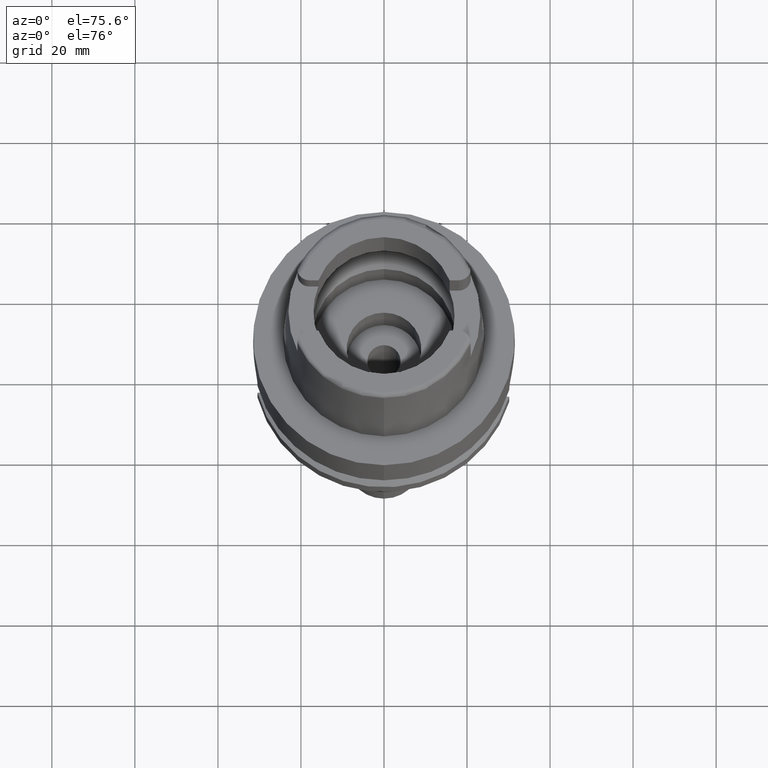
[diagram: clean part render]
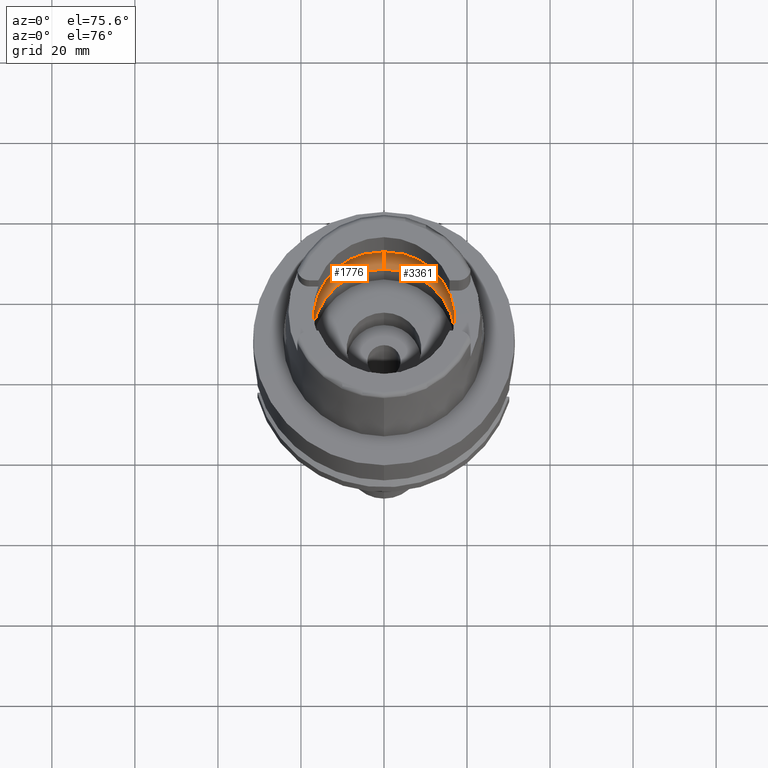
[diagram: same view with one multi-face feature highlighted, each face labeled with its STEP entity id]
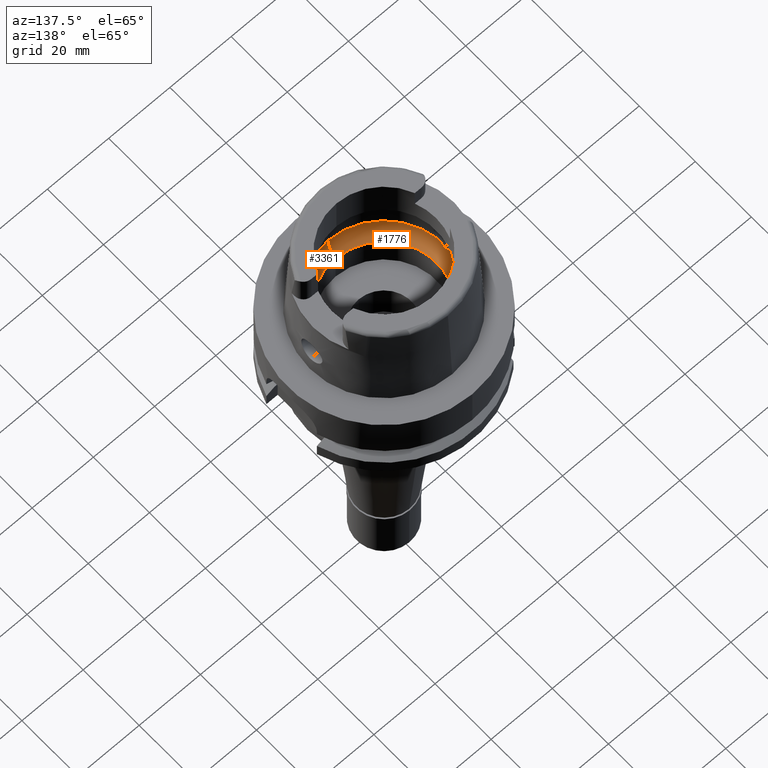
[diagram: same view with one multi-face feature highlighted, each face labeled with its STEP entity id]
A machine part, auxiliary view. The highlighted faces form ONE feature: a constant-radius fillet chain: 2 tangent blend faces with common blend radius 8 mm. The faces share edges in the B-rep.
A second angle (auxiliary view) of the same feature is appended — it is thin or edge-on in the first view.
Their STEP definitions:
[1] entity #3361 (Torus):
#10 = CARTESIAN_POINT ( 'NONE',  ( 19.94501428475999916, 0.0000000000000000000, 5.250000000000000000 ) ) ;
#181 = ORIENTED_EDGE ( 'NONE', *, *, #949, .T. ) ;
#349 = CARTESIAN_POINT ( 'NONE',  ( 19.84575864665999845, 2.479085262491000030, 6.186348233825000875 ) ) ;
#356 = DIRECTION ( 'NONE',  ( 0.0000000000000000000, 0.0000000000000000000, -1.000000000000000000 ) ) ;
#358 = CARTESIAN_POINT ( 'NONE',  ( 19.84575864665999845, -2.479085262491000030, 6.186348233825000875 ) ) ;
#381 = ORIENTED_EDGE ( 'NONE', *, *, #393, .F. ) ;
#382 = CARTESIAN_POINT ( 'NONE',  ( 19.92606514397989770, -1.317277072657929482, 5.488971321394604530 ) ) ;
#393 = EDGE_CURVE ( 'NONE', #3752, #1563, #3090, .T. ) ;
#400 = CARTESIAN_POINT ( 'NONE',  ( 19.92517033494361556, 1.343817989893349107, 5.499041037980064495 ) ) ;
#443 = VERTEX_POINT ( 'NONE', #1825 ) ;
#491 = TOROIDAL_SURFACE ( 'NONE', #3357, 12.00000000000000000, 8.000000000000000000 ) ;
#687 = CARTESIAN_POINT ( 'NONE',  ( 19.94340172595015304, -0.4850964367992693926, 5.274618258021613215 ) ) ;
#747 = B_SPLINE_CURVE_WITH_KNOTS ( 'NONE', 3,
 ( #1121, #1520, #687, #2339, #793, #3682, #2783, #3711, #1628, #4501, #382, #1550, #3210, #4445, #358 ),
 .UNSPECIFIED., .F., .F.,
 ( 4, 2, 2, 1, 1, 1, 2, 2, 4 ),
 ( 0.0000000000000000000, 0.2500000000000020539, 0.3750000000000029421, 0.4375000000000034417, 0.4687500000000037748, 0.4843750000000038303, 0.4921875000000037192, 0.5000000000000035527, 1.000000000000000000 ),
 .UNSPECIFIED. ) ;
#793 = CARTESIAN_POINT ( 'NONE',  ( 19.93654835100833367, -0.9262716854701089630, 5.364597633124626341 ) ) ;
#855 = DIRECTION ( 'NONE',  ( 0.0000000000000000000, -1.000000000000000000, 0.0000000000000000000 ) ) ;
#864 = CARTESIAN_POINT ( 'NONE',  ( 19.92546248860872282, 1.335239979097143204, 5.495763251854120846 ) ) ;
#916 = DIRECTION ( 'NONE',  ( 0.0000000000000000000, 0.0000000000000000000, 1.000000000000000000 ) ) ;
#920 = CIRCLE ( 'NONE', #3447, 7.999999999999992895 ) ;
#949 = EDGE_CURVE ( 'NONE', #3752, #2128, #3457, .T. ) ;
#970 = ORIENTED_EDGE ( 'NONE', *, *, #1524, .F. ) ;
#1043 = ORIENTED_EDGE ( 'NONE', *, *, #1923, .F. ) ;
#1121 = CARTESIAN_POINT ( 'NONE',  ( 19.94501428475999916, 0.0000000000000000000, 5.250000000000000000 ) ) ;
#1200 = AXIS2_PLACEMENT_3D ( 'NONE', #4465, #356, #5270 ) ;
#1228 = CARTESIAN_POINT ( 'NONE',  ( 0.0000000000000000000, -17.25000000000000000, 0.1500000000000999700 ) ) ;
#1520 = CARTESIAN_POINT ( 'NONE',  ( 19.94501428475999560, -0.2480409057135740114, 5.250000000000000000 ) ) ;
#1524 = EDGE_CURVE ( 'NONE', #443, #2128, #4333, .T. ) ;
#1550 = CARTESIAN_POINT ( 'NONE',  ( 19.92590906856741739, -1.321975393417708533, 5.490734853362561729 ) ) ;
#1563 = VERTEX_POINT ( 'NONE', #3254 ) ;
#1612 = CARTESIAN_POINT ( 'NONE',  ( 19.94501428475999560, 0.4961173919640057828, 5.249999999999999112 ) ) ;
#1628 = CARTESIAN_POINT ( 'NONE',  ( 19.92705252129802673, -1.287137646737876562, 5.477775250961276932 ) ) ;
#1639 = CARTESIAN_POINT ( 'NONE',  ( 19.91819205508162227, 1.528957928135066258, 5.574902649514004160 ) ) ;
#1825 = CARTESIAN_POINT ( 'NONE',  ( 19.84575864665999845, -2.479085262491000030, 6.186348233825000875 ) ) ;
#1900 = EDGE_LOOP ( 'NONE', ( #2832, #1043, #5250, #381, #181, #970, #2246 ) ) ;
#1923 = EDGE_CURVE ( 'NONE', #4416, #4280, #5215, .T. ) ;
#2001 = CARTESIAN_POINT ( 'NONE',  ( 19.86453694707040185, 2.328759808428484401, 6.053897721567618184 ) ) ;
#2051 = CARTESIAN_POINT ( 'NONE',  ( 19.90653742522446379, 1.770129897597210178, 5.691947325404154157 ) ) ;
#2060 = CARTESIAN_POINT ( 'NONE',  ( 0.0000000000000000000, 20.00000000000000000, 6.186348233825000875 ) ) ;
#2128 = VERTEX_POINT ( 'NONE', #2772 ) ;
#2246 = ORIENTED_EDGE ( 'NONE', *, *, #3664, .F. ) ;
#2339 = CARTESIAN_POINT ( 'NONE',  ( 19.93856404952062533, -0.8186975845892766612, 5.338708399471165045 ) ) ;
#2484 = CARTESIAN_POINT ( 'NONE',  ( 19.88058488118039335, 2.158463974044561251, 5.925241923970850699 ) ) ;
#2500 = CARTESIAN_POINT ( 'NONE',  ( 0.0000000000000000000, 12.00000000000000000, 6.186348233825000875 ) ) ;
#2549 = EDGE_CURVE ( 'NONE', #4280, #2795, #3147, .T. ) ;
#2576 = DIRECTION ( 'NONE',  ( 0.0000000000000000000, 1.000000000000000000, 0.0000000000000000000 ) ) ;
#2606 = DIRECTION ( 'NONE',  ( 0.0000000000000000000, 0.6562500000000006661, -0.7545435292281016393 ) ) ;
#2772 = CARTESIAN_POINT ( 'NONE',  ( 0.0000000000000000000, -20.00000000000000000, 6.186348233825000875 ) ) ;
#2783 = CARTESIAN_POINT ( 'NONE',  ( 19.93095478763670414, -1.158129320215881553, 5.432640215619322532 ) ) ;
#2795 = VERTEX_POINT ( 'NONE', #4442 ) ;
#2832 = ORIENTED_EDGE ( 'NONE', *, *, #2549, .F. ) ;
#2886 = DIRECTION ( 'NONE',  ( -1.000000000000000000, 0.0000000000000000000, 0.0000000000000000000 ) ) ;
#2894 = CARTESIAN_POINT ( 'NONE',  ( 19.92390804158881323, 1.380020403548397390, 5.513101011326238421 ) ) ;
#2926 = AXIS2_PLACEMENT_3D ( 'NONE', #4970, #2886, #5279 ) ;
#3027 = CARTESIAN_POINT ( 'NONE',  ( 0.0000000000000000000, 0.0000000000000000000, 6.186348233825000875 ) ) ;
#3042 = DIRECTION ( 'NONE',  ( 0.0000000000000000000, -1.000000000000000000, 0.0000000000000000000 ) ) ;
#3090 = CIRCLE ( 'NONE', #3795, 17.25000000000000000 ) ;
#3147 = B_SPLINE_CURVE_WITH_KNOTS ( 'NONE', 3,
 ( #349, #2001, #2484, #4564, #2051, #4100, #1639, #4544, #2894, #3755, #400, #864, #4979, #1612, #10 ),
 .UNSPECIFIED., .F., .F.,
 ( 4, 2, 2, 1, 1, 1, 2, 2, 4 ),
 ( 0.0000000000000000000, 0.2499999999999997780, 0.3749999999999993339, 0.4374999999999993894, 0.4687499999999993339, 0.4843749999999992228, 0.4921874999999992228, 0.4999999999999992228, 1.000000000000000000 ),
 .UNSPECIFIED. ) ;
#3210 = CARTESIAN_POINT ( 'NONE',  ( 19.90995224940876440, -1.795938227366685735, 5.670407759492701594 ) ) ;
#3254 = CARTESIAN_POINT ( 'NONE',  ( 0.0000000000000000000, 17.25000000000000000, 0.1499999999999999944 ) ) ;
#3357 = AXIS2_PLACEMENT_3D ( 'NONE', #3027, #4169, #855 ) ;
#3361 = ADVANCED_FACE ( 'NONE', ( #3383 ), #491, .F. ) ;
#3383 = FACE_OUTER_BOUND ( 'NONE', #1900, .T. ) ;
#3447 = AXIS2_PLACEMENT_3D ( 'NONE', #2500, #3844, #2606 ) ;
#3457 = CIRCLE ( 'NONE', #2926, 7.999999999999992895 ) ;
#3664 = EDGE_CURVE ( 'NONE', #2795, #443, #747, .T. ) ;
#3682 = CARTESIAN_POINT ( 'NONE',  ( 19.93292009368618523, -1.081811675228354197, 5.409026468986952274 ) ) ;
#3711 = CARTESIAN_POINT ( 'NONE',  ( 19.92839737014920587, -1.244570694252813636, 5.462384987428344552 ) ) ;
#3752 = VERTEX_POINT ( 'NONE', #1228 ) ;
#3755 = CARTESIAN_POINT ( 'NONE',  ( 19.92466861724970784, 1.358322854824430825, 5.504643156161263207 ) ) ;
#3795 = AXIS2_PLACEMENT_3D ( 'NONE', #3859, #916, #3042 ) ;
#3844 = DIRECTION ( 'NONE',  ( 1.000000000000000000, 0.0000000000000000000, 0.0000000000000000000 ) ) ;
#3859 = CARTESIAN_POINT ( 'NONE',  ( 0.0000000000000000000, 0.0000000000000000000, 0.1500000000000999700 ) ) ;
#4026 = CARTESIAN_POINT ( 'NONE',  ( 19.84575864665999845, 2.479085262491000030, 6.186348233825000875 ) ) ;
#4100 = CARTESIAN_POINT ( 'NONE',  ( 19.91447782635634312, 1.610662747255747096, 5.612997844306910622 ) ) ;
#4169 = DIRECTION ( 'NONE',  ( 0.0000000000000000000, 0.0000000000000000000, -1.000000000000000000 ) ) ;
#4245 = AXIS2_PLACEMENT_3D ( 'NONE', #4656, #4717, #2576 ) ;
#4280 = VERTEX_POINT ( 'NONE', #4026 ) ;
#4333 = CIRCLE ( 'NONE', #1200, 20.00000000000001421 ) ;
#4416 = VERTEX_POINT ( 'NONE', #2060 ) ;
#4442 = CARTESIAN_POINT ( 'NONE',  ( 19.94501428475999916, 0.0000000000000000000, 5.250000000000000000 ) ) ;
#4445 = CARTESIAN_POINT ( 'NONE',  ( 19.88331727194813325, -2.178418147904306768, 5.921432929931162548 ) ) ;
#4465 = CARTESIAN_POINT ( 'NONE',  ( 0.0000000000000000000, 0.0000000000000000000, 6.186348233825000875 ) ) ;
#4501 = CARTESIAN_POINT ( 'NONE',  ( 19.92646198462449902, -1.305240071145295166, 5.484478754890474761 ) ) ;
#4544 = CARTESIAN_POINT ( 'NONE',  ( 19.92207737120660838, 1.430228553613144271, 5.533213232039442708 ) ) ;
#4564 = CARTESIAN_POINT ( 'NONE',  ( 19.90056123289476275, 1.871176222328685412, 5.748254232980315237 ) ) ;
#4656 = CARTESIAN_POINT ( 'NONE',  ( 0.0000000000000000000, 0.0000000000000000000, 6.186348233825000875 ) ) ;
#4717 = DIRECTION ( 'NONE',  ( 0.0000000000000000000, 0.0000000000000000000, -1.000000000000000000 ) ) ;
#4970 = CARTESIAN_POINT ( 'NONE',  ( 0.0000000000000000000, -12.00000000000000000, 6.186348233825000875 ) ) ;
#4979 = CARTESIAN_POINT ( 'NONE',  ( 19.93856420767916404, 0.9461146673045343070, 5.348252842016403719 ) ) ;
#5137 = EDGE_CURVE ( 'NONE', #1563, #4416, #920, .T. ) ;
#5215 = CIRCLE ( 'NONE', #4245, 20.00000000000000000 ) ;
#5250 = ORIENTED_EDGE ( 'NONE', *, *, #5137, .F. ) ;
#5270 = DIRECTION ( 'NONE',  ( 0.9922879323327794543, -0.1239542631244973381, 0.0000000000000000000 ) ) ;
#5279 = DIRECTION ( 'NONE',  ( 0.0000000000000000000, -0.6562500000000006661, -0.7545435292281016393 ) ) ;
[2] entity #1776 (Torus):
#11 = ORIENTED_EDGE ( 'NONE', *, *, #949, .F. ) ;
#13 = CARTESIAN_POINT ( 'NONE',  ( -19.88331748558546863, 2.178416437691213847, 5.921431423076573886 ) ) ;
#21 = EDGE_CURVE ( 'NONE', #5042, #331, #3493, .T. ) ;
#32 = CIRCLE ( 'NONE', #1511, 17.25000000000000000 ) ;
#55 = ORIENTED_EDGE ( 'NONE', *, *, #2963, .F. ) ;
#146 = CARTESIAN_POINT ( 'NONE',  ( -19.92207708731347893, -1.430235645114716236, 5.533216160818549945 ) ) ;
#177 = CARTESIAN_POINT ( 'NONE',  ( -19.92517005465364122, -1.343825724865687299, 5.499044007117725563 ) ) ;
#331 = VERTEX_POINT ( 'NONE', #514 ) ;
#364 = ORIENTED_EDGE ( 'NONE', *, *, #4336, .F. ) ;
#396 = CIRCLE ( 'NONE', #1948, 20.00000000000001421 ) ;
#407 = CARTESIAN_POINT ( 'NONE',  ( -19.92646225184126862, 1.305232378195689824, 5.484475898738382149 ) ) ;
#459 = CARTESIAN_POINT ( 'NONE',  ( -19.93856414242614861, 0.8186925878076017904, 5.338707303697845852 ) ) ;
#514 = CARTESIAN_POINT ( 'NONE',  ( -19.94501428475999916, 0.0000000000000000000, 5.250000000000000000 ) ) ;
#869 = CARTESIAN_POINT ( 'NONE',  ( -19.92839760948977812, 1.244563320346107949, 5.462382395228401855 ) ) ;
#920 = CIRCLE ( 'NONE', #3447, 7.999999999999992895 ) ;
#949 = EDGE_CURVE ( 'NONE', #3752, #2128, #3457, .T. ) ;
#1029 = DIRECTION ( 'NONE',  ( 0.0000000000000000000, 0.0000000000000000000, -1.000000000000000000 ) ) ;
#1096 = CARTESIAN_POINT ( 'NONE',  ( -19.90653715571481186, -1.770134510244598225, 5.691949820981133001 ) ) ;
#1145 = DIRECTION ( 'NONE',  ( 0.0000000000000000000, 0.0000000000000000000, 1.000000000000000000 ) ) ;
#1174 = CARTESIAN_POINT ( 'NONE',  ( -19.94501428475999916, 0.0000000000000000000, 5.250000000000000000 ) ) ;
#1193 = CARTESIAN_POINT ( 'NONE',  ( -19.92606541691252531, 1.317269316938425749, 5.488968411663852187 ) ) ;
#1228 = CARTESIAN_POINT ( 'NONE',  ( 0.0000000000000000000, -17.25000000000000000, 0.1500000000000999700 ) ) ;
#1245 = CARTESIAN_POINT ( 'NONE',  ( -19.93292026788402893, 1.081805184547093068, 5.409024518554652161 ) ) ;
#1399 = CARTESIAN_POINT ( 'NONE',  ( -19.92390775950450887, -1.380027868490966370, 5.513103966555212843 ) ) ;
#1511 = AXIS2_PLACEMENT_3D ( 'NONE', #4520, #1145, #3251 ) ;
#1563 = VERTEX_POINT ( 'NONE', #3254 ) ;
#1776 = ADVANCED_FACE ( 'NONE', ( #2497 ), #2410, .F. ) ;
#1915 = VERTEX_POINT ( 'NONE', #3101 ) ;
#1948 = AXIS2_PLACEMENT_3D ( 'NONE', #3268, #2816, #3240 ) ;
#1987 = CARTESIAN_POINT ( 'NONE',  ( -19.84575864665999845, -2.479085262491000030, 6.186348233825000875 ) ) ;
#2060 = CARTESIAN_POINT ( 'NONE',  ( 0.0000000000000000000, 20.00000000000000000, 6.186348233825000875 ) ) ;
#2113 = DIRECTION ( 'NONE',  ( 0.0000000000000000000, 0.0000000000000000000, -1.000000000000000000 ) ) ;
#2128 = VERTEX_POINT ( 'NONE', #2772 ) ;
#2163 = EDGE_CURVE ( 'NONE', #331, #1915, #2904, .T. ) ;
#2343 = AXIS2_PLACEMENT_3D ( 'NONE', #5385, #2113, #2881 ) ;
#2410 = TOROIDAL_SURFACE ( 'NONE', #3475, 12.00000000000000000, 8.000000000000000000 ) ;
#2493 = CARTESIAN_POINT ( 'NONE',  ( -19.92590934684916704, 1.321967521133739165, 5.490731887689888957 ) ) ;
#2497 = FACE_OUTER_BOUND ( 'NONE', #3597, .T. ) ;
#2500 = CARTESIAN_POINT ( 'NONE',  ( 0.0000000000000000000, 12.00000000000000000, 6.186348233825000875 ) ) ;
#2606 = DIRECTION ( 'NONE',  ( 0.0000000000000000000, 0.6562500000000006661, -0.7545435292281016393 ) ) ;
#2689 = CARTESIAN_POINT ( 'NONE',  ( 0.0000000000000000000, 0.0000000000000000000, 6.186348233825000875 ) ) ;
#2699 = CARTESIAN_POINT ( 'NONE',  ( -19.92546220624968356, -1.335247853971594179, 5.495766252403414320 ) ) ;
#2772 = CARTESIAN_POINT ( 'NONE',  ( 0.0000000000000000000, -20.00000000000000000, 6.186348233825000875 ) ) ;
#2816 = DIRECTION ( 'NONE',  ( 0.0000000000000000000, 0.0000000000000000000, -1.000000000000000000 ) ) ;
#2881 = DIRECTION ( 'NONE',  ( 0.0000000000000000000, -1.000000000000000000, 0.0000000000000000000 ) ) ;
#2886 = DIRECTION ( 'NONE',  ( -1.000000000000000000, 0.0000000000000000000, 0.0000000000000000000 ) ) ;
#2897 = CARTESIAN_POINT ( 'NONE',  ( -19.90995255595161595, 1.795933884455198859, 5.670404923157676969 ) ) ;
#2904 = B_SPLINE_CURVE_WITH_KNOTS ( 'NONE', 3,
 ( #4375, #3247, #4547, #459, #5011, #1245, #4210, #869, #3675, #407, #1193, #2493, #2897, #13, #4925 ),
 .UNSPECIFIED., .F., .F.,
 ( 4, 2, 2, 1, 1, 1, 2, 2, 4 ),
 ( 0.0000000000000000000, 0.2500000000000077716, 0.3750000000000116018, 0.4375000000000136557, 0.4687500000000147660, 0.4843750000000151545, 0.4921875000000151545, 0.5000000000000150990, 1.000000000000000000 ),
 .UNSPECIFIED. ) ;
#2926 = AXIS2_PLACEMENT_3D ( 'NONE', #4970, #2886, #5279 ) ;
#2963 = EDGE_CURVE ( 'NONE', #2128, #5042, #3920, .T. ) ;
#3061 = CARTESIAN_POINT ( 'NONE',  ( -19.92466833620654043, -1.358330481554967495, 5.504646120092022699 ) ) ;
#3074 = DIRECTION ( 'NONE',  ( 0.0000000000000000000, -1.000000000000000000, 0.0000000000000000000 ) ) ;
#3101 = CARTESIAN_POINT ( 'NONE',  ( -19.84575864665999845, 2.479085262491000030, 6.186348233825000875 ) ) ;
#3109 = CARTESIAN_POINT ( 'NONE',  ( -19.91447754460955721, -1.610668511863743824, 5.613000592307838765 ) ) ;
#3155 = CARTESIAN_POINT ( 'NONE',  ( -19.84575864665999845, -2.479085262491000030, 6.186348233825000875 ) ) ;
#3240 = DIRECTION ( 'NONE',  ( -0.9922879323327794543, 0.1239542631244973381, 0.0000000000000000000 ) ) ;
#3247 = CARTESIAN_POINT ( 'NONE',  ( -19.94501428476000982, 0.2480393544995824484, 5.250000000000001776 ) ) ;
#3251 = DIRECTION ( 'NONE',  ( 0.0000000000000000000, 1.000000000000000000, 0.0000000000000000000 ) ) ;
#3254 = CARTESIAN_POINT ( 'NONE',  ( 0.0000000000000000000, 17.25000000000000000, 0.1499999999999999944 ) ) ;
#3268 = CARTESIAN_POINT ( 'NONE',  ( 0.0000000000000000000, 0.0000000000000000000, 6.186348233825000875 ) ) ;
#3447 = AXIS2_PLACEMENT_3D ( 'NONE', #2500, #3844, #2606 ) ;
#3457 = CIRCLE ( 'NONE', #2926, 7.999999999999992895 ) ;
#3475 = AXIS2_PLACEMENT_3D ( 'NONE', #2689, #1029, #3074 ) ;
#3493 = B_SPLINE_CURVE_WITH_KNOTS ( 'NONE', 3,
 ( #3155, #5144, #4828, #5191, #1096, #3109, #4283, #146, #1399, #3061, #177, #2699, #4064, #4089, #1174 ),
 .UNSPECIFIED., .F., .F.,
 ( 4, 2, 2, 1, 1, 1, 2, 2, 4 ),
 ( 0.0000000000000000000, 0.2499999999999978906, 0.3749999999999969469, 0.4374999999999966138, 0.4687499999999963363, 0.4843749999999962252, 0.4921874999999963363, 0.4999999999999964473, 1.000000000000000000 ),
 .UNSPECIFIED. ) ;
#3597 = EDGE_LOOP ( 'NONE', ( #55, #11, #364, #3885, #4652, #4261, #3662 ) ) ;
#3662 = ORIENTED_EDGE ( 'NONE', *, *, #21, .F. ) ;
#3675 = CARTESIAN_POINT ( 'NONE',  ( -19.92705278000905267, 1.287130048446308850, 5.477772474801105851 ) ) ;
#3752 = VERTEX_POINT ( 'NONE', #1228 ) ;
#3844 = DIRECTION ( 'NONE',  ( 1.000000000000000000, 0.0000000000000000000, 0.0000000000000000000 ) ) ;
#3885 = ORIENTED_EDGE ( 'NONE', *, *, #5137, .T. ) ;
#3920 = CIRCLE ( 'NONE', #2343, 20.00000000000000000 ) ;
#4064 = CARTESIAN_POINT ( 'NONE',  ( -19.93856411452979316, -0.9461205214874512937, 5.348254081022255413 ) ) ;
#4089 = CARTESIAN_POINT ( 'NONE',  ( -19.94501428476000626, -0.4961205090553917896, 5.249999999999999112 ) ) ;
#4210 = CARTESIAN_POINT ( 'NONE',  ( -19.93095499014167515, 1.158122409084933579, 5.432637980145733181 ) ) ;
#4261 = ORIENTED_EDGE ( 'NONE', *, *, #2163, .F. ) ;
#4283 = CARTESIAN_POINT ( 'NONE',  ( -19.91819177005300645, -1.528964289322727321, 5.574905501562616550 ) ) ;
#4336 = EDGE_CURVE ( 'NONE', #1563, #3752, #32, .T. ) ;
#4375 = CARTESIAN_POINT ( 'NONE',  ( -19.94501428475999916, 0.0000000000000000000, 5.250000000000000000 ) ) ;
#4416 = VERTEX_POINT ( 'NONE', #2060 ) ;
#4520 = CARTESIAN_POINT ( 'NONE',  ( 0.0000000000000000000, 0.0000000000000000000, 0.1500000000000999700 ) ) ;
#4547 = CARTESIAN_POINT ( 'NONE',  ( -19.94340174917653385, 0.4850934172104624520, 5.274617949540548523 ) ) ;
#4565 = EDGE_CURVE ( 'NONE', #1915, #4416, #396, .T. ) ;
#4652 = ORIENTED_EDGE ( 'NONE', *, *, #4565, .F. ) ;
#4828 = CARTESIAN_POINT ( 'NONE',  ( -19.88058469725548250, -2.158465908505010855, 5.925243384237697697 ) ) ;
#4925 = CARTESIAN_POINT ( 'NONE',  ( -19.84575864665999845, 2.479085262491000030, 6.186348233825000875 ) ) ;
#4970 = CARTESIAN_POINT ( 'NONE',  ( 0.0000000000000000000, -12.00000000000000000, 6.186348233825000875 ) ) ;
#5011 = CARTESIAN_POINT ( 'NONE',  ( -19.93654847294681431, 0.9262660664362666330, 5.364596220942285498 ) ) ;
#5042 = VERTEX_POINT ( 'NONE', #1987 ) ;
#5137 = EDGE_CURVE ( 'NONE', #1563, #4416, #920, .T. ) ;
#5144 = CARTESIAN_POINT ( 'NONE',  ( -19.86453683997870101, -2.328760665727179546, 6.053898476926395489 ) ) ;
#5191 = CARTESIAN_POINT ( 'NONE',  ( -19.90056097910783350, -1.871180122140707835, 5.748256501260657458 ) ) ;
#5279 = DIRECTION ( 'NONE',  ( 0.0000000000000000000, -0.6562500000000006661, -0.7545435292281016393 ) ) ;
#5385 = CARTESIAN_POINT ( 'NONE',  ( 0.0000000000000000000, 0.0000000000000000000, 6.186348233825000875 ) ) ;